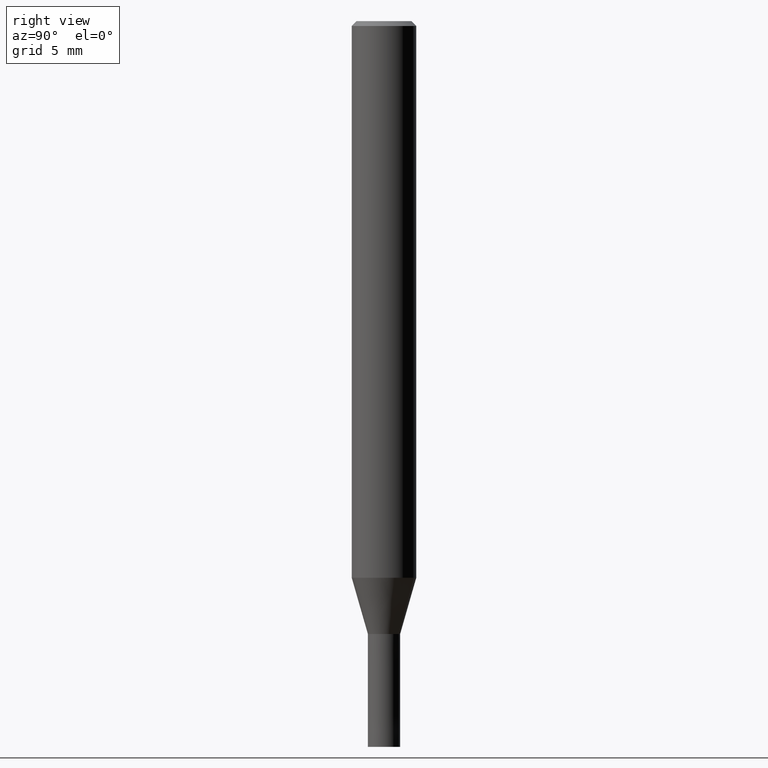
[diagram: clean part render]
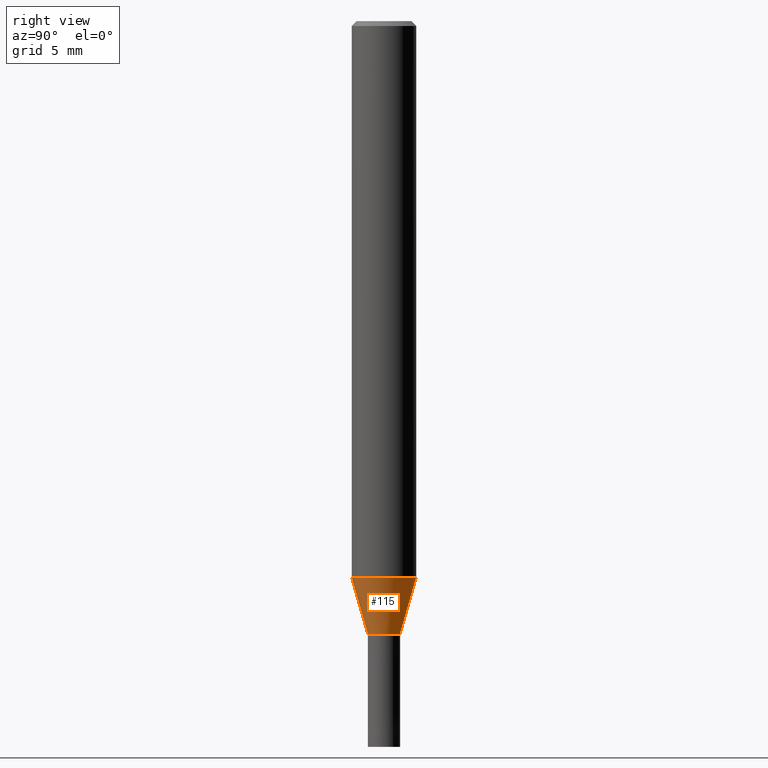
[diagram: same view with one face highlighted and labeled with its STEP entity id]
A machine part, right view. The second image highlights one B-rep face of the part: STEP entity #115.
In plain terms, the highlighted conical surface has half-angle 16.002 deg.
Its self-contained STEP definition (entity closure, byte-faithful):
#115=ADVANCED_FACE('',(#287),#288,.T.);
#141=VERTEX_POINT('',#319);
#157=VERTEX_POINT('',#337);
#185=VERTEX_POINT('',#371);
#189=EDGE_CURVE('',#211,#157,#375,.T.);
#199=EDGE_CURVE('',#157,#185,#385,.T.);
#211=VERTEX_POINT('',#399);
#235=EDGE_CURVE('',#211,#141,#426,.T.);
#251=EDGE_CURVE('',#185,#141,#443,.T.);
#287=FACE_OUTER_BOUND('',#473,.T.);
#288=CONICAL_SURFACE('',#474,1.49995,0.279284171542493);
#319=CARTESIAN_POINT('',(2.44915147732706E-016,-1.99995,-34.513));
#337=CARTESIAN_POINT('',(0.0,0.99995,-38.0));
#371=CARTESIAN_POINT('',(1.22454512350469E-016,-0.99995,-38.0));
#375=LINE('',#578,#579);
#385=CIRCLE('',#594,0.99995);
#399=CARTESIAN_POINT('',(0.0,1.99995,-34.513));
#426=CIRCLE('',#648,1.99995);
#443=LINE('',#669,#670);
#473=EDGE_LOOP('',(#695,#696,#697,#698));
#474=AXIS2_PLACEMENT_3D('',#699,#700,#701);
#578=CARTESIAN_POINT('',(-1.83684830041587E-016,1.49995,-36.2565));
#579=VECTOR('',#812,1.0);
#594=AXIS2_PLACEMENT_3D('',#820,#821,#822);
#648=AXIS2_PLACEMENT_3D('',#875,#876,#877);
#669=CARTESIAN_POINT('',(1.83684830041587E-016,-1.49995,-36.2565));
#670=VECTOR('',#888,1.0);
#695=ORIENTED_EDGE('',*,*,#189,.F.);
#696=ORIENTED_EDGE('',*,*,#235,.T.);
#697=ORIENTED_EDGE('',*,*,#251,.F.);
#698=ORIENTED_EDGE('',*,*,#199,.F.);
#699=CARTESIAN_POINT('',(0.0,0.0,-36.2565));
#700=DIRECTION('',(-0.0,-0.0,1.0));
#701=DIRECTION('',(0.0,1.0,0.0));
#812=DIRECTION('',(3.37584327551579E-017,-0.275667626987132,-0.961253015304131));
#820=CARTESIAN_POINT('',(0.0,0.0,-38.0));
#821=DIRECTION('',(0.0,0.0,-1.0));
#822=DIRECTION('',(0.0,1.0,0.0));
#875=CARTESIAN_POINT('',(0.0,0.0,-34.513));
#876=DIRECTION('',(0.0,0.0,-1.0));
#877=DIRECTION('',(0.0,1.0,0.0));
#888=DIRECTION('',(3.37584327551579E-017,-0.275667626987132,0.961253015304131));